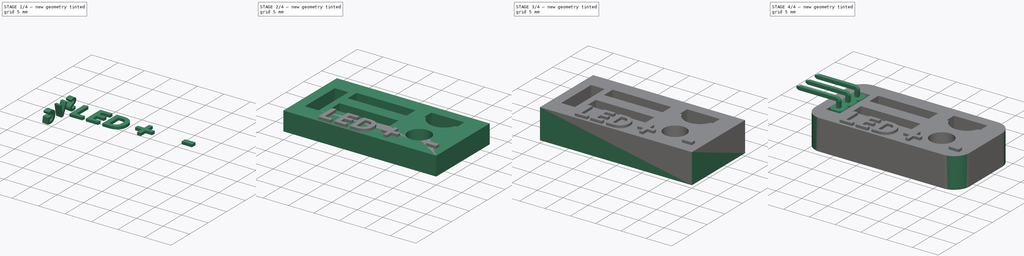
[diagram: build sequence overview — one tinted view per stage of 4, left to right]
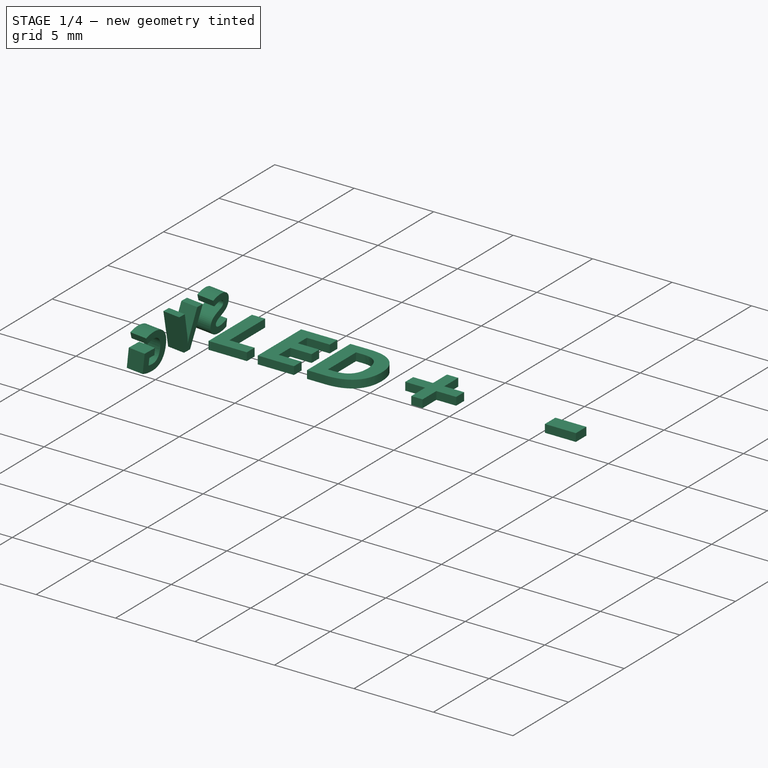
[diagram: stage 1 of 4 — iso view after this stage's code; geometry added in this stage tinted green]
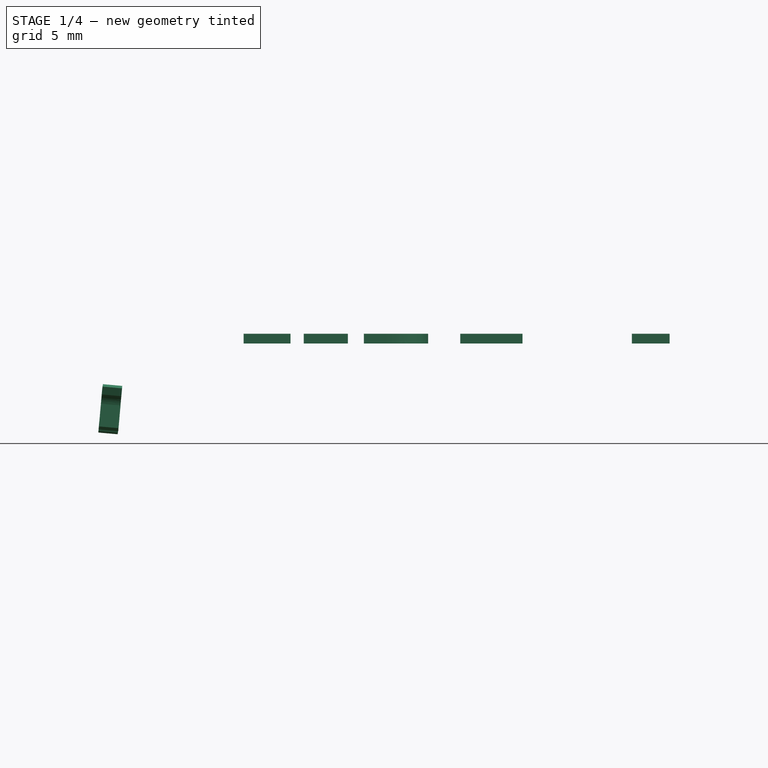
[diagram: stage 1 of 4 — front view after this stage's code; geometry added in this stage tinted green]
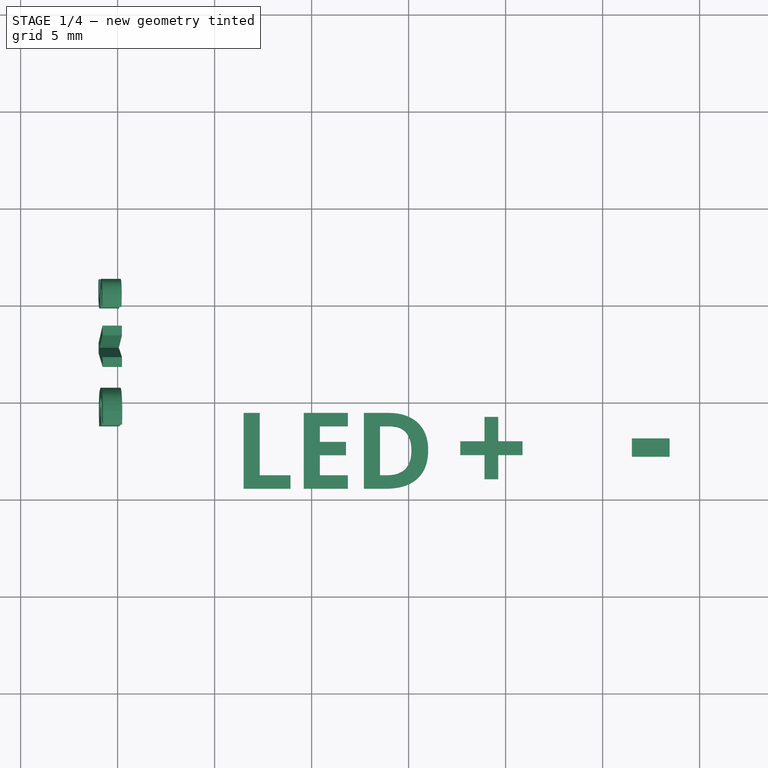
[diagram: stage 1 of 4 — top view after this stage's code; geometry added in this stage tinted green]
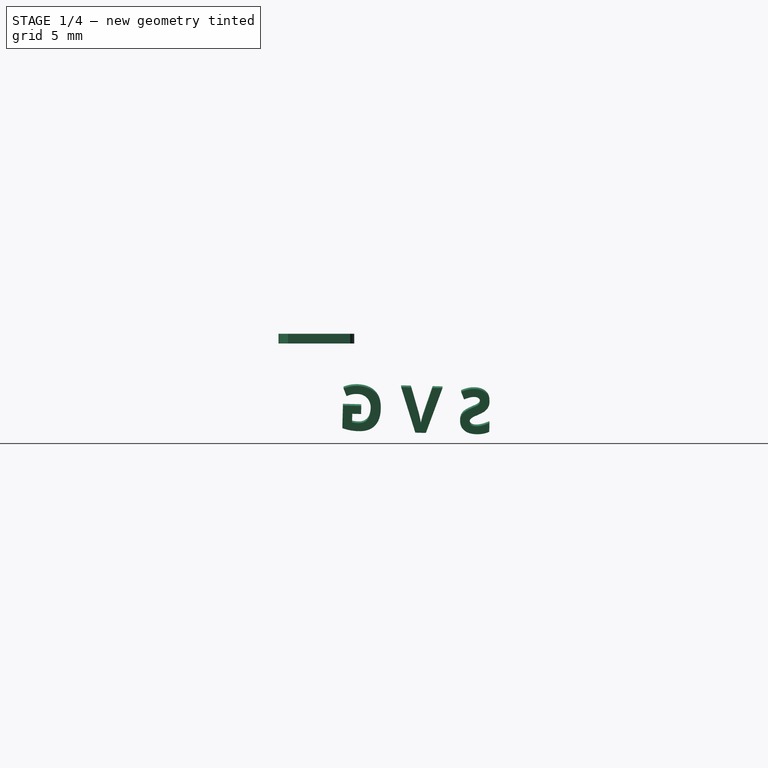
[diagram: stage 1 of 4 — right view after this stage's code; geometry added in this stage tinted green]
FCSTD DOCUMENT  (FreeCAD 0.16R6703 (Git))
Label: pcb-alhambra-led
License: All rights reserved
LicenseURL: http://en.wikipedia.org/wiki/All_rights_reserved
objects: Part::Feature×17, App::DocumentObjectGroup×6, Sketcher::SketchObject×5, PartDesign::Pad×5, Part::Part2DObjectPython×4, Part::Extrusion×3, Part::FeaturePython×2, Spreadsheet::Sheet×1, PartDesign::Pocket×1, Part::MultiFuse×1, Part::Fillet×1, Part::Fuse×1
note: 46 computed .brp shape members not serialized (recipe doc carries the construction recipe); baked Part::Feature solids carry a one-line shape summary decoded from their .brp

FEATURE [Part::Part2DObjectPython] ShapeString  # Draft 2D object (typed FeaturePython)
  FontFile = <userpath>/develop/alhambra-led/Printable-PCB/Open_Sans/OpenSans-Bold.ttf
  Placement = pos=(6.36484,0.980052,3.7) rot=(0,0,1;0rad)
  Size = 5
  String = LED
  Tracking = 0
FEATURE [Part::Extrusion] Extrude  label="Text-LED"
  Base = -> ShapeString
  Dir = (0,0,0.5)
  Placement = pos=(-0.363125,-0.484166,0) rot=(0,0,1;0rad)
  Solid = true
FEATURE [Part::Part2DObjectPython] ShapeString001  # Draft 2D object (typed FeaturePython)
  FontFile = <userpath>/develop/alhambra-led/Printable-PCB/Open_Sans/OpenSans-Bold.ttf
  Placement = pos=(18.1506,0.324873,3.7) rot=(0,0,1;0rad)
  Size = 6
  String = +
  Tracking = 0
FEATURE [Part::Extrusion] Extrude001  label="Text-+"
  Base = -> ShapeString001
  Dir = (0,0,0.5)
  Placement = pos=(-0.746517,-0.00732875,0) rot=(0,0,1;0rad)
  Solid = true
FEATURE [Part::Part2DObjectPython] ShapeString002  # Draft 2D object (typed FeaturePython)
  FontFile = <userpath>/develop/alhambra-led/Printable-PCB/Open_Sans/OpenSans-Bold.ttf
  Placement = pos=(26.2775,0.516359,3.7) rot=(0,0,1;0rad)
  Size = 7
  String = -
  Tracking = 0
FEATURE [Part::Extrusion] Extrude002  label="Text-"
  Base = -> ShapeString002
  Dir = (0,0,0.5)
  Solid = true
FEATURE [App::DocumentObjectGroup] Group001  label="connector"
  Group = -> [Clone003,Clone002]
FEATURE [Part::Feature] Clone004  label="Head001"
  Placement = pos=(23.2,12,0.87) rot=(0,0,1;0rad)
  shape: bbox 4.9 x 3.424 x 4.83 mm, 8 faces (baked)
FEATURE [Part::Feature] Clone001001  label="Pins001"
  Placement = pos=(23.2,12,0.87) rot=(0,0,1;0rad)
  shape: bbox 5.588 x 0.5 x 5.54 mm, 34 faces, 3 solids (baked)
FEATURE [App::DocumentObjectGroup] Group002  label="Transistor-BC635"
  Group = -> [Clone004,Clone001001]
FEATURE [Part::Feature] Part__Feature  label="led_head"
  Placement = pos=(23.2,5,1.2) rot=(1,0,0;1.5708rad)
  shape: bbox 3.686 x 3.686 x 6.1 mm, 5 faces (baked)
FEATURE [Part::Feature] Part__Feature001  label="led-neg-pin"
  Placement = pos=(23.2,5,1.2) rot=(1,0,0;1.5708rad)
  shape: bbox 1.74 x 0.44 x 5.65 mm, 10 faces (baked)
FEATURE [Part::Feature] Part__Feature002  label="led-pos-pin"
  Placement = pos=(23.2,5,1.2) rot=(1,0,0;1.5708rad)
  shape: bbox 1.1 x 0.44 x 7.7 mm, 11 faces (baked)
FEATURE [App::DocumentObjectGroup] Group003  label="Led-3mm"
  Group = -> [Part__Feature,Part__Feature001,Part__Feature002]
FEATURE [Part::Feature] Part__Feature003  label="Clone_of_res-body"
  Placement = pos=(11.497,6.21169,2.36562) rot=(0,0,1;0rad)
  shape: bbox 6 x 2.3 x 2.3 mm, 5 faces (baked)
FEATURE [Part::Feature] Part__Feature004  label="Clone_of_ring-1"
  Placement = pos=(11.497,6.21169,2.36562) rot=(0,0,1;0rad)
  shape: bbox 0.3919 x 2.231 x 2.231 mm, 4 faces (baked)
FEATURE [Part::Feature] Part__Feature005  label="Clone_of_ring-2"
  Placement = pos=(11.497,6.21169,2.36562) rot=(0,0,1;0rad)
  shape: bbox 0.4 x 1.833 x 1.833 mm, 4 faces (baked)
FEATURE [Part::Feature] Part__Feature006  label="Clone_of_ring-4"
  Placement = pos=(11.497,6.21169,2.36562) rot=(0,0,1;0rad)
  shape: bbox 0.3939 x 2.233 x 2.233 mm, 4 faces (baked)
FEATURE [Part::Feature] Part__Feature007  label="Clone_of_Sweep"
  Placement = pos=(11.497,6.21169,2.36562) rot=(0,0,1;0rad)
  shape: bbox 10.64 x 0.5 x 4.404 mm, 7 faces (baked)
FEATURE [Part::Feature] Part__Feature008  label="Clone_of_ring-3"
  Placement = pos=(11.497,6.21169,2.36562) rot=(0,0,1;0rad)
  shape: bbox 0.4 x 1.833 x 1.833 mm, 4 faces (baked)
FEATURE [App::DocumentObjectGroup] Group004  label="Resistor-220ohm"
  Group = -> [Part__Feature003,Part__Feature004,Part__Feature005,Part__Feature006,Part__Feature007,Part__Feature008]
FEATURE [Part::Feature] Part__Feature009  label="Clone_of_res-body001"
  Placement = pos=(11.497,11,2.36562) rot=(0,0,1;0rad)
  shape: bbox 6 x 2.3 x 2.3 mm, 5 faces (baked)
FEATURE [Part::Feature] Part__Feature010  label="Clone_of_ring-005"
  Placement = pos=(11.497,11,2.36562) rot=(0,0,1;0rad)
  shape: bbox 0.4 x 1.833 x 1.833 mm, 4 faces (baked)
FEATURE [Part::Feature] Part__Feature011  label="Clone_of_ring-006"
  Placement = pos=(11.497,11,2.36562) rot=(0,0,1;0rad)
  shape: bbox 0.4 x 1.833 x 1.833 mm, 4 faces (baked)
FEATURE [Part::Feature] Part__Feature012  label="Clone_of_ring-007"
  Placement = pos=(11.497,11,2.36562) rot=(0,0,1;0rad)
  shape: bbox 0.3939 x 2.233 x 2.233 mm, 4 faces (baked)
FEATURE [Part::Feature] Part__Feature013  label="Clone_of_ring-008"
  Placement = pos=(11.497,11,2.36562) rot=(0,0,1;0rad)
  shape: bbox 0.3919 x 2.231 x 2.231 mm, 4 faces (baked)
FEATURE [Part::Feature] Part__Feature014  label="Clone_of_Sweep001"
  Placement = pos=(11.497,11,2.36562) rot=(0,0,1;0rad)
  shape: bbox 10.64 x 0.5 x 4.404 mm, 7 faces (baked)
FEATURE [App::DocumentObjectGroup] Group005  label="Resistor-2K2"
  Group = -> [Part__Feature009,Part__Feature010,Part__Feature011,Part__Feature012,Part__Feature013,Part__Feature014]
FEATURE [App::DocumentObjectGroup] Group  label="Components"
  Group = -> [Group001,Group002,Group003,Group004,Group005]
FEATURE [Part::Part2DObjectPython] ShapeString003  label="Pin Labels text"  # Draft 2D object (typed FeaturePython)
  FontFile = <userpath>/Dropbox/1_proyectos/alhambra-led/Printable-PCB/Open_Sans/OpenSans-Bold.ttf
  Placement = pos=(0,11.5,-1) rot=(-0.555631,0.56905,0.606182;4.25667rad)
  Size = 3
  String = S V G
  Tracking = 0
FEATURE [PartDesign::Pad] Pad011  label="Pin Labels"
  Length = 1
  Length2 = 100
  Placement = pos=(0,11.5,-1) rot=(-0.555631,0.56905,0.606182;4.25667rad)
  Sketch = -> ShapeString003
  Type = 0
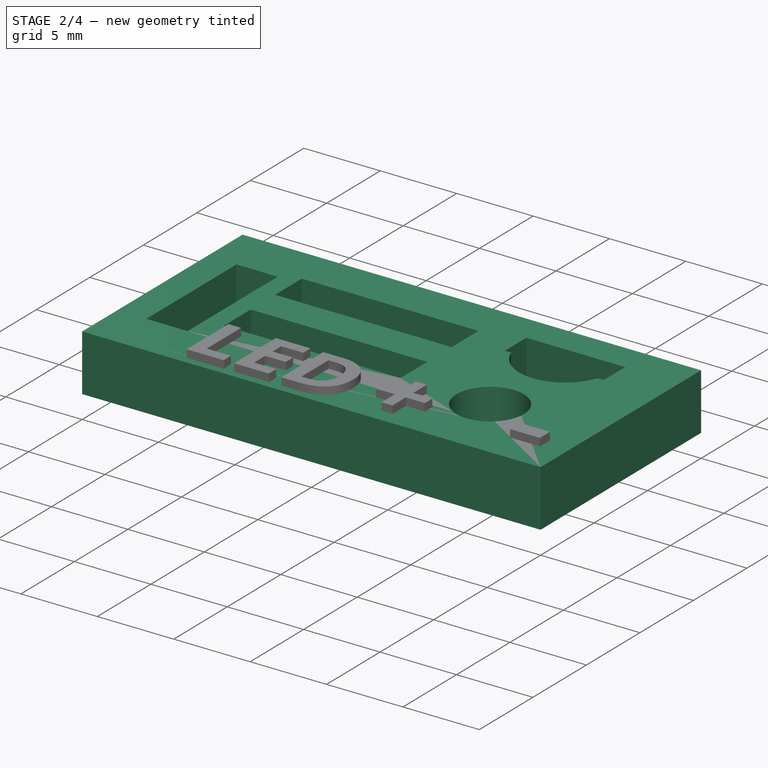
[diagram: stage 2 of 4 — iso view after this stage's code; geometry added in this stage tinted green]
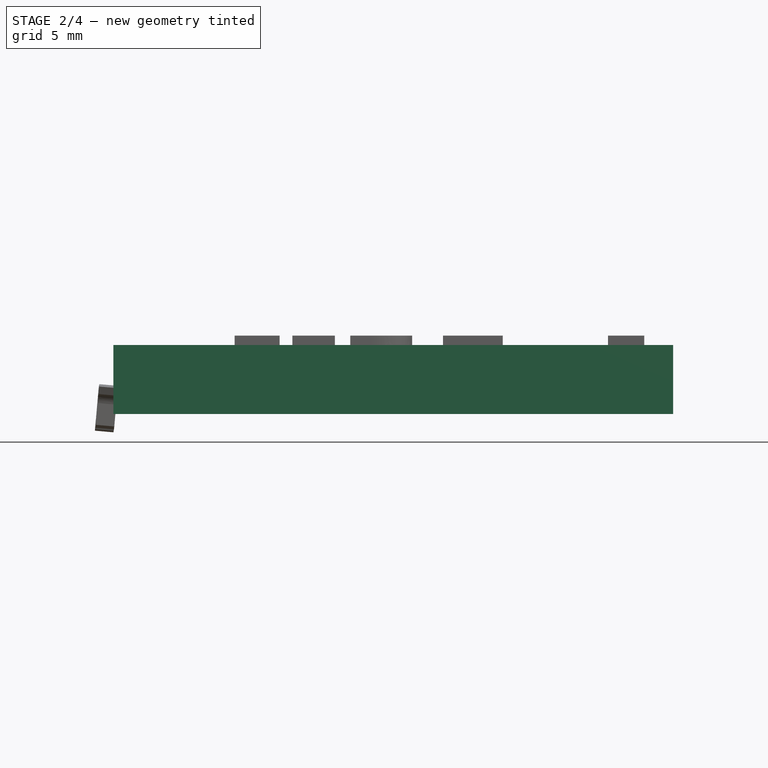
[diagram: stage 2 of 4 — front view after this stage's code; geometry added in this stage tinted green]
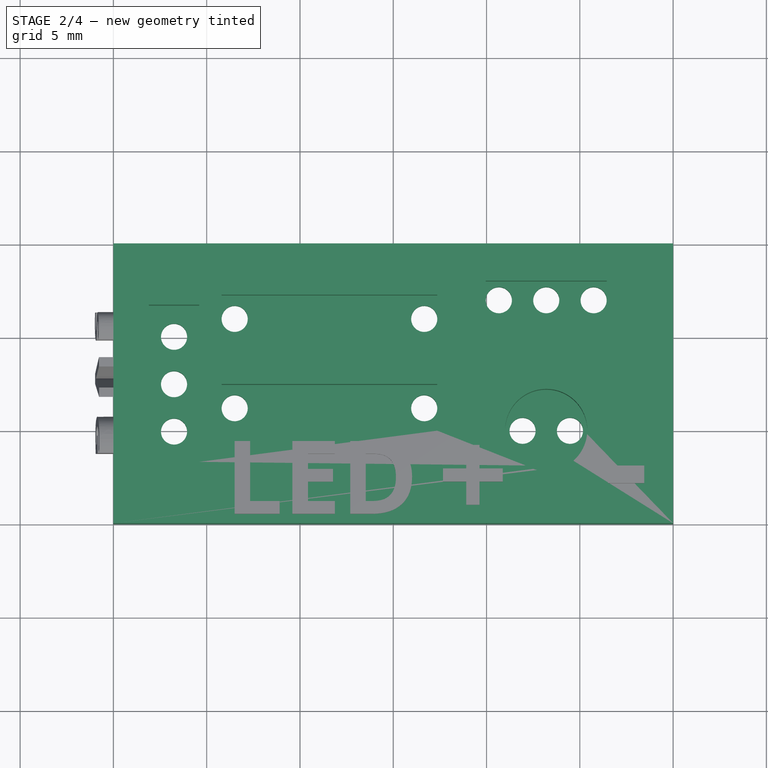
[diagram: stage 2 of 4 — top view after this stage's code; geometry added in this stage tinted green]
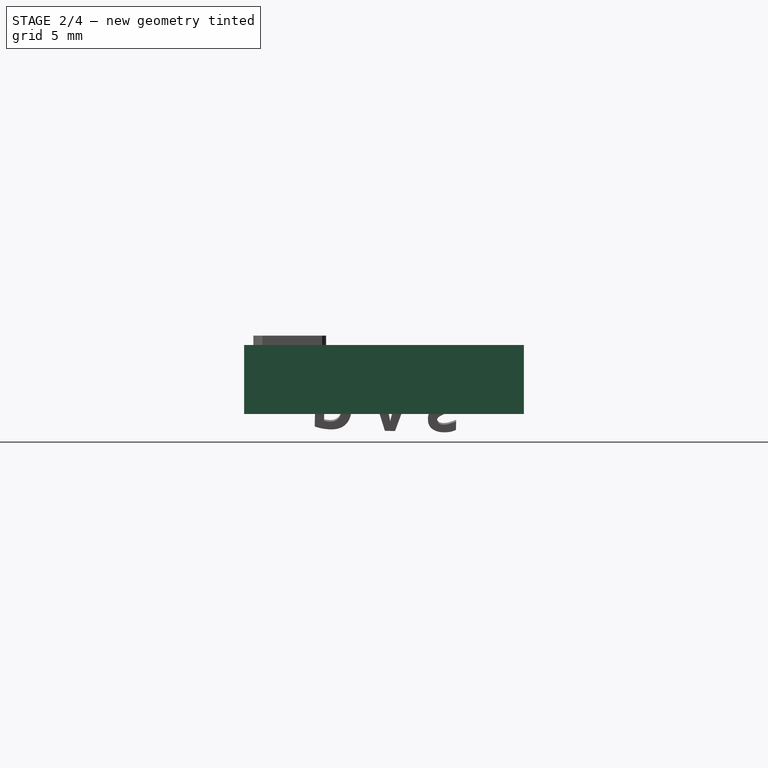
[diagram: stage 2 of 4 — right view after this stage's code; geometry added in this stage tinted green]
FEATURE [Spreadsheet::Sheet] Spreadsheet  label="Parameters"
  cells = B2=PCB_th; C2(PCB_th)=1.2; D2=Thickness of the PCB layer; B3=Drill1_diam; C3(Drill1_diam)=1.4; D3=Drills type 1 diameter; B4=PCB_sp; C4(PCB_sp)=0.2; D4=Thickness of the PCB spacer layer; B5=PCB_ch_th_; C5(PCB_ch_th)=2; D5=Thickness of the Bottom channels; B6=PCB_top_th_; C6(PCB_top_th)=2.5; D6=Thickness of the TOP pcb
FEATURE [Sketcher::SketchObject] Sketch  label="pcb-body-sketch"
  expr: Constraints[28] = 2.54 * 4
  expr: Constraints[15] = Parameters.Drill1_diam / 2
  sketch-geometry (25):
    g0: LineSegment StartX=0 StartY=0 StartZ=0 EndX=30 EndY=0 EndZ=0
    g1: LineSegment StartX=30 StartY=0 StartZ=0 EndX=30 EndY=15 EndZ=0
    g2: LineSegment StartX=30 StartY=15 StartZ=0 EndX=0 EndY=15 EndZ=0
    g3: LineSegment StartX=0 StartY=15 StartZ=0 EndX=0 EndY=0 EndZ=0
    g4: Circle CenterX=3.25 CenterY=10.04 CenterZ=0 NormalX=0 NormalY=0 NormalZ=1 Radius=0.7
    g5: Circle CenterX=3.25 CenterY=7.5 CenterZ=0 NormalX=0 NormalY=0 NormalZ=1 Radius=0.7
    g6: LineSegment [constr] StartX=3.25 StartY=10.04 StartZ=0 EndX=3.25 EndY=7.5 EndZ=0
    g7: Circle CenterX=3.25 CenterY=4.96 CenterZ=0 NormalX=0 NormalY=0 NormalZ=1 Radius=0.7
    g8: LineSegment [constr] StartX=3.25 StartY=7.5 StartZ=0 EndX=3.25 EndY=4.96 EndZ=0
    g9: Circle CenterX=6.5 CenterY=6.21169 CenterZ=0 NormalX=0 NormalY=0 NormalZ=1 Radius=0.7
    g10: Circle CenterX=16.66 CenterY=6.21169 CenterZ=0 NormalX=0 NormalY=0 NormalZ=1 Radius=0.7
    g11: LineSegment [constr] StartX=6.5 StartY=6.21169 StartZ=0 EndX=16.66 EndY=6.21169 EndZ=0
    g12: Circle CenterX=6.5 CenterY=11 CenterZ=0 NormalX=0 NormalY=0 NormalZ=1 Radius=0.7
    g13: Circle CenterX=16.66 CenterY=11 CenterZ=0 NormalX=0 NormalY=0 NormalZ=1 Radius=0.7
    g14: LineSegment [constr] StartX=6.5 StartY=11 StartZ=0 EndX=16.66 EndY=11 EndZ=0
    g15: LineSegment [constr] StartX=6.5 StartY=6.21169 StartZ=0 EndX=6.5 EndY=11 EndZ=0
    g16: Circle CenterX=21.93 CenterY=5 CenterZ=0 NormalX=0 NormalY=0 NormalZ=1 Radius=0.7
    g17: Circle CenterX=24.47 CenterY=5 CenterZ=0 NormalX=0 NormalY=0 NormalZ=1 Radius=0.7
    g18: Circle CenterX=20.66 CenterY=12 CenterZ=0 NormalX=0 NormalY=0 NormalZ=1 Radius=0.7
    g19: Circle CenterX=23.2 CenterY=12 CenterZ=0 NormalX=0 NormalY=0 NormalZ=1 Radius=0.7
    g20: Circle CenterX=25.74 CenterY=12 CenterZ=0 NormalX=0 NormalY=0 NormalZ=1 Radius=0.7
    g21: LineSegment [constr] StartX=20.66 StartY=12 StartZ=0 EndX=23.2 EndY=12 EndZ=0
    g22: LineSegment [constr] StartX=23.2 StartY=12 StartZ=0 EndX=25.74 EndY=12 EndZ=0
    g23: LineSegment [constr] StartX=21.93 StartY=5 StartZ=0 EndX=24.47 EndY=5 EndZ=0
    g24: LineSegment [constr] StartX=23.2 StartY=12 StartZ=0 EndX=23.2 EndY=5 EndZ=0
  constraints (63):
    c: Coincident(g0,g1)
    c: Coincident(g1,g2)
    c: Coincident(g2,g3)
    c: Coincident(g3,g0)
    c: Horizontal(g0)
    c: Horizontal(g2)
    c: Vertical(g1)
    c: Vertical(g3)
    c: Coincident(g0,g-1)
    c: DistanceX(g2,g2) = 30
    c: DistanceY(g3,g3) = 15
    c: Coincident(g6,g4)
    c: Vertical(g6)
    c: DistanceY(g6,g6) = 2.54
    c: Equal(g4,g5)
    c: Radius(g4) = 0.7
    c: DistanceX(g2,g4) = 3.25
    c: Equal(g7,g5)
    c: Coincident(g5,g6)
    c: Coincident(g8,g5)
    c: Coincident(g8,g7)
    c: Vertical(g8)
    c: Equal(g6,g8)
    c: Coincident(g11,g9)
    c: Horizontal(g11)
    c: Coincident(g11,g10)
    c: Equal(g9,g10)
    c: DistanceX(g5,g9) = 3.25
    c: DistanceX(g9,g10) = 10.16
    c: Coincident(g14,g12)
    c: Coincident(g14,g13)
    c: Horizontal(g14)
    c: Equal(g12,g13)
    c: Equal(g13,g4)
    c: DistanceX(g14,g14) = 10.16
    c: Coincident(g15,g9)
    c: Coincident(g15,g12)
    c: Vertical(g15)
    c: DistanceX(g16,g17) = 2.54
    c: Equal(g16,g17)
    c: Equal(g17,g13)
    c: Equal(g10,g12)
    c: Equal(g18,g19)
    c: Equal(g19,g20)
    c: Equal(g20,g13)
    c: Coincident(g21,g18)
    c: Coincident(g21,g19)
    c: Coincident(g22,g19)
    c: Coincident(g22,g20)
    c: DistanceX(g21,g21) = 2.54
    c: DistanceX(g19,g20) = 2.54
    c: Coincident(g23,g16)
    c: Coincident(g23,g17)
    c: Horizontal(g23)
    c: DistanceX(g13,g18) = 4
    c: Horizontal(g21)
    c: Horizontal(g22)
    c: Vertical(g24)
    c: Coincident(g24,g19)
    c: DistanceY(g13,g18) = 1
    c: PointOnObject(g24,g23)
    c: Symmetric(g16,g17,g24)
    c: DistanceY(g24,g24) = 7
FEATURE [PartDesign::Pad] Pad  label="PCB-layer-body"
  Length = 1.2
  Length2 = 100
  Sketch = -> Sketch
  Type = 0
  expr: Length = Parameters.PCB_th
FEATURE [Sketcher::SketchObject] Sketch017  label="Top-base-sketch"
  ExternalGeometry = -> [Pad]
  Placement = pos=(0,0,1.2) rot=(0,0,1;0rad)
  Support = -> Pad [Face18]
  sketch-geometry (4):
    g0: LineSegment StartX=0 StartY=15 StartZ=0 EndX=30 EndY=15 EndZ=0
    g1: LineSegment StartX=30 StartY=15 StartZ=0 EndX=30 EndY=0 EndZ=0
    g2: LineSegment StartX=30 StartY=0 StartZ=0 EndX=0 EndY=0 EndZ=0
    g3: LineSegment StartX=0 StartY=0 StartZ=0 EndX=0 EndY=15 EndZ=0
  constraints (12):
    c: Coincident(g0,g1)
    c: Coincident(g1,g2)
    c: Coincident(g2,g3)
    c: Coincident(g3,g0)
    c: Horizontal(g0)
    c: Horizontal(g2)
    c: Vertical(g1)
    c: Vertical(g3)
    c: PointOnObject(g0,g-2)
    c: PointOnObject(g1,g-1)
    c: Coincident(g0,g-3)
    c: Coincident(g0,g-4)
FEATURE [PartDesign::Pad] Pad008  label="PCB-top-base"
  Length = 2.5
  Length2 = 100
  Sketch = -> Sketch017
  Type = 0
  expr: Length = Parameters.PCB_top_th
FEATURE [Sketcher::SketchObject] Sketch018  label="PCB-top-sketch"
  ExternalGeometry = -> [Pad008]
  Placement = pos=(0,0,3.7) rot=(0,0,1;0rad)
  Support = -> Pad008 [Face27]
  expr: Constraints[16] = 2.54 * 3 + 0.8
  sketch-geometry (28):
    g0: LineSegment StartX=1.9 StartY=11.71 StartZ=0 EndX=4.6 EndY=11.71 EndZ=0
    g1: LineSegment StartX=4.6 StartY=11.71 StartZ=0 EndX=4.6 EndY=3.29 EndZ=0
    g2: LineSegment StartX=4.6 StartY=3.29 StartZ=0 EndX=1.9 EndY=3.29 EndZ=0
    g3: LineSegment StartX=1.9 StartY=3.29 StartZ=0 EndX=1.9 EndY=11.71 EndZ=0
    g4: LineSegment [constr] StartX=3.25 StartY=7.5 StartZ=0 EndX=4.6 EndY=7.5 EndZ=0
    g5: LineSegment [constr] StartX=3.25 StartY=7.5 StartZ=0 EndX=3.25 EndY=11.71 EndZ=0
    g6: LineSegment StartX=5.8 StartY=12.25 StartZ=0 EndX=17.36 EndY=12.25 EndZ=0
    g7: LineSegment StartX=17.36 StartY=12.25 StartZ=0 EndX=17.36 EndY=9.75 EndZ=0
    g8: LineSegment StartX=17.36 StartY=9.75 StartZ=0 EndX=5.8 EndY=9.75 EndZ=0
    g9: LineSegment StartX=5.8 StartY=9.75 StartZ=0 EndX=5.8 EndY=12.25 EndZ=0
    g10: LineSegment [constr] StartX=6.5 StartY=11 StartZ=0 EndX=17.36 EndY=11 EndZ=0
    g11: LineSegment StartX=5.8 StartY=7.46169 StartZ=0 EndX=17.36 EndY=7.46169 EndZ=0
    g12: LineSegment StartX=17.36 StartY=7.46169 StartZ=0 EndX=17.36 EndY=4.96169 EndZ=0
    g13: LineSegment StartX=17.36 StartY=4.96169 StartZ=0 EndX=5.8 EndY=4.96169 EndZ=0
    g14: LineSegment StartX=5.8 StartY=4.96169 StartZ=0 EndX=5.8 EndY=7.46169 EndZ=0
    g15: Circle CenterX=23.2 CenterY=5 CenterZ=0 NormalX=0 NormalY=0 NormalZ=1 Radius=2.2
    g16: LineSegment StartX=19.96 StartY=13 StartZ=0 EndX=26.44 EndY=13 EndZ=0
    g17: LineSegment StartX=26.44 StartY=13 StartZ=0 EndX=26.44 EndY=11 EndZ=0
    g18: LineSegment [constr] StartX=26.44 StartY=11 StartZ=0 EndX=19.96 EndY=11 EndZ=0
    g19: LineSegment StartX=19.96 StartY=11 StartZ=0 EndX=19.96 EndY=13 EndZ=0
    g20: LineSegment [constr] StartX=23.2 StartY=13 StartZ=0 EndX=23.2 EndY=11 EndZ=0
    g21: LineSegment [constr] StartX=19.96 StartY=12 StartZ=0 EndX=26.44 EndY=12 EndZ=0
    g22: ArcOfCircle CenterX=23.2 CenterY=12 CenterZ=0 NormalX=0 NormalY=0 NormalZ=1 Radius=3 StartAngle=3.48143 EndAngle=5.94335
    g23: LineSegment StartX=19.96 StartY=11 StartZ=0 EndX=20.3716 EndY=11 EndZ=0
    g24: LineSegment StartX=26.0284 StartY=11 StartZ=0 EndX=26.44 EndY=11 EndZ=0
    g25: LineSegment [constr] StartX=23.2 StartY=11 StartZ=0 EndX=23.2 EndY=5 EndZ=0
    g26: LineSegment [constr] StartX=21.93 StartY=5 StartZ=0 EndX=23.2 EndY=5 EndZ=0
    g27: LineSegment [constr] StartX=6.5 StartY=6.21169 StartZ=0 EndX=17.36 EndY=6.21169 EndZ=0
  constraints (83):
    c: Coincident(g0,g1)
    c: Coincident(g1,g2)
    c: Coincident(g2,g3)
    c: Coincident(g3,g0)
    c: Horizontal(g0)
    c: Horizontal(g2)
    c: Vertical(g1)
    c: Vertical(g3)
    c: Coincident(g4,g-3)
    c: Horizontal(g4)
    c: Symmetric(g0,g2,g4)
    c: DistanceX(g0,g0) = 2.7
    c: Coincident(g5,g4)
    c: PointOnObject(g5,g0)
    c: Vertical(g5)
    c: Symmetric(g0,g0,g5)
    c: DistanceY(g1,g1) = 8.42
    c: Coincident(g6,g7)
    c: Coincident(g7,g8)
    c: Coincident(g8,g9)
    c: Coincident(g9,g6)
    c: Horizontal(g6)
    c: Horizontal(g8)
    c: Vertical(g7)
    c: Vertical(g9)
    c: DistanceY(g7,g7) = 2.5
    c: Horizontal(g10)
    c: Coincident(g10,g-4)
    c: PointOnObject(g10,g7)
    c: Tangent(g9,g-4)
    c: Symmetric(g6,g8,g10)
    c: Tangent(g7,g-5)
    c: Coincident(g11,g12)
    c: Coincident(g12,g13)
    c: Coincident(g13,g14)
    c: Coincident(g14,g11)
    c: Horizontal(g11)
    c: Horizontal(g13)
    c: Vertical(g12)
    c: Vertical(g14)
    c: PointOnObject(g11,g9)
    c: PointOnObject(g11,g7)
    c: Equal(g12,g7)
    c: Radius(g15) = 2.2
    c: Coincident(g16,g17)
    c: Coincident(g17,g18)
    c: Coincident(g18,g19)
    c: Coincident(g19,g16)
    c: Horizontal(g16)
    c: Horizontal(g18)
    c: Vertical(g17)
    c: Vertical(g19)
    c: DistanceY(g17,g17) = 2
    c: PointOnObject(g20,g18)
    c: Vertical(g20)
    c: PointOnObject(g20,g16)
    c: Symmetric(g16,g16,g20)
    c: PointOnObject(g-9,g20)
    c: PointOnObject(g21,g19)
    c: PointOnObject(g21,g17)
    c: Horizontal(g21)
    c: PointOnObject(g-9,g21)
    c: Symmetric(g16,g18,g21)
    c: Tangent(g19,g-7)
    c: Coincident(g22,g-9)
    c: Radius(g22) = 3
    c: Coincident(g23,g18)
    c: Coincident(g23,g22)
    c: Coincident(g24,g22)
    c: Coincident(g24,g17)
    c: Horizontal(g23)
    c: Horizontal(g24)
    c: Vertical(g25)
    c: Coincident(g25,g20)
    c: Coincident(g25,g15)
    c: Coincident(g26,g-10)
    c: Coincident(g26,g15)
    c: Horizontal(g26)
    c: PointOnObject(g4,g1)
    c: Horizontal(g27)
    c: Coincident(g27,g-6)
    c: PointOnObject(g27,g12)
    c: Symmetric(g11,g13,g27)
FEATURE [PartDesign::Pocket] Pocket  label="PCB-top"
  Length = 2.5
  Sketch = -> Sketch018
  Type = 0
  expr: Length = Parameters.PCB_top_th
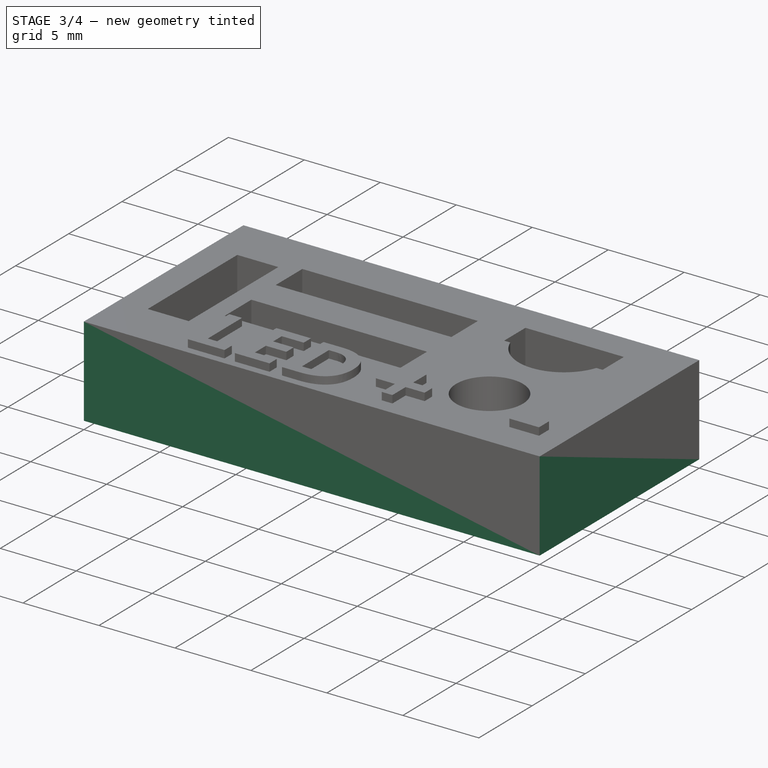
[diagram: stage 3 of 4 — iso view after this stage's code; geometry added in this stage tinted green]
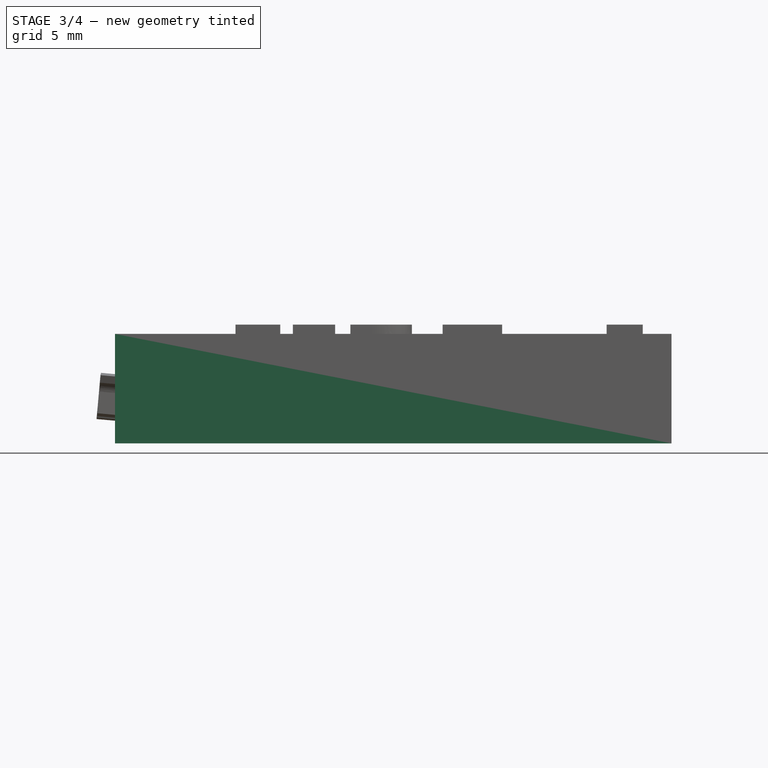
[diagram: stage 3 of 4 — front view after this stage's code; geometry added in this stage tinted green]
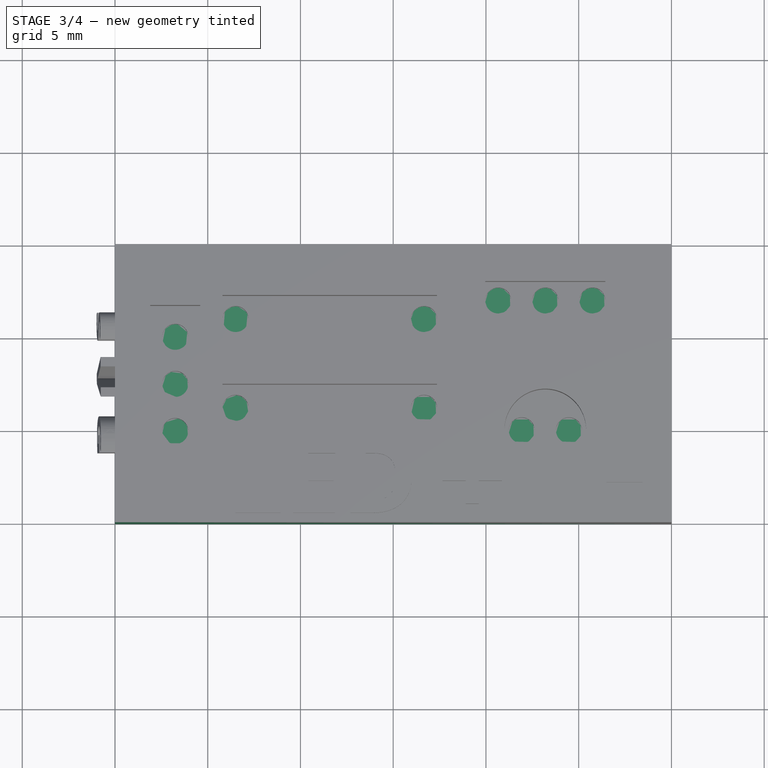
[diagram: stage 3 of 4 — top view after this stage's code; geometry added in this stage tinted green]
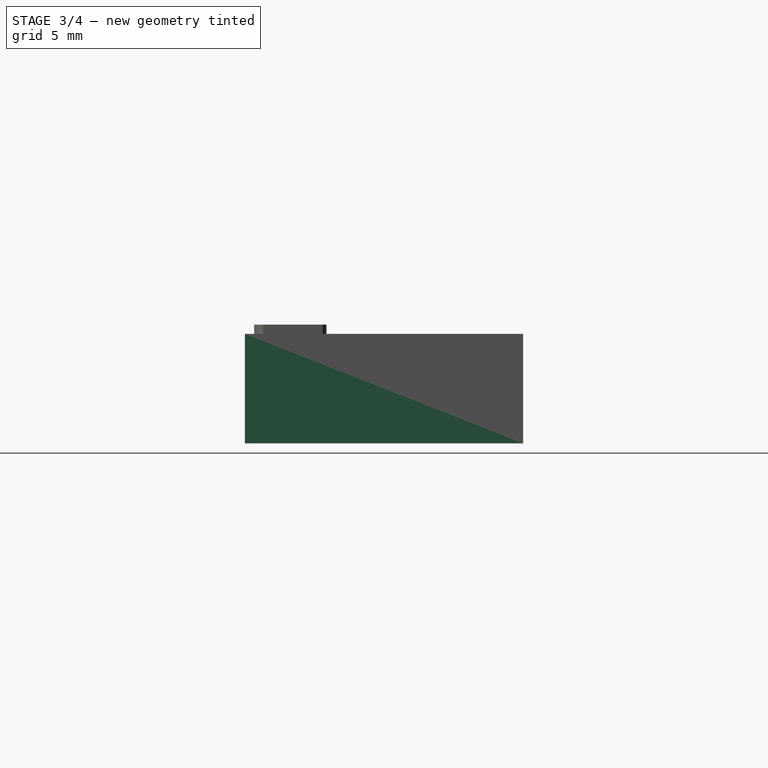
[diagram: stage 3 of 4 — right view after this stage's code; geometry added in this stage tinted green]
FEATURE [Sketcher::SketchObject] Sketch019  label="spacer-layer-sketch"
  ExternalGeometry = -> [Pocket]
  Placement = pos=(0,0,0) rot=(1,0,0;3.14159rad)
  Support = -> Pocket [Face1]
  sketch-geometry (4):
    g0: LineSegment StartX=0 StartY=0 StartZ=0 EndX=30 EndY=0 EndZ=0
    g1: LineSegment StartX=30 StartY=0 StartZ=0 EndX=30 EndY=-15 EndZ=0
    g2: LineSegment StartX=30 StartY=-15 StartZ=0 EndX=0 EndY=-15 EndZ=0
    g3: LineSegment StartX=0 StartY=-15 StartZ=0 EndX=0 EndY=0 EndZ=0
  constraints (10):
    c: Coincident(g0,g1)
    c: Coincident(g1,g2)
    c: Coincident(g2,g3)
    c: Coincident(g3,g0)
    c: Horizontal(g0)
    c: Horizontal(g2)
    c: Vertical(g1)
    c: Vertical(g3)
    c: Coincident(g1,g-3)
    c: Coincident(g0,g-1)
FEATURE [PartDesign::Pad] Pad009  label="Spacer-layer"
  Length = 0.2
  Length2 = 100
  Sketch = -> Sketch019
  Type = 0
  expr: Length = Parameters.PCB_sp
FEATURE [Sketcher::SketchObject] Sketch020  label="Bottom-channels-sketch"
  ExternalGeometry = -> [Pad009]
  Placement = pos=(0,0,-0.2) rot=(1,0,0;3.14159rad)
  Support = -> Pad009 [Face1]
  sketch-geometry (33):
    g0: LineSegment StartX=0 StartY=0 StartZ=0 EndX=30 EndY=0 EndZ=0
    g1: LineSegment StartX=30 StartY=0 StartZ=0 EndX=30 EndY=-15 EndZ=0
    g2: LineSegment StartX=30 StartY=-15 StartZ=0 EndX=0 EndY=-15 EndZ=0
    g3: LineSegment StartX=0 StartY=-15 StartZ=0 EndX=0 EndY=0 EndZ=0
    g4: LineSegment StartX=22.4512 StartY=-7.60457 StartZ=0 EndX=14.7502 EndY=-7.60457 EndZ=0
    g5: LineSegment StartX=14.7502 StartY=-7.60457 StartZ=0 EndX=14.7502 EndY=-3.50936 EndZ=0
    g6: LineSegment StartX=6.01684 StartY=-4.91866 StartZ=0 EndX=8.36252 EndY=-4.91866 EndZ=0
    g7: LineSegment StartX=8.36252 StartY=-4.91866 StartZ=0 EndX=8.36252 EndY=-7.45592 EndZ=0
    g8: LineSegment StartX=8.36252 StartY=-7.45592 StartZ=0 EndX=6.59513 EndY=-7.45592 EndZ=0
    g9: LineSegment StartX=4.53601 StartY=-11.6503 StartZ=0 EndX=1.90203 EndY=-11.6503 EndZ=0
    g10: LineSegment StartX=1.90203 StartY=-11.6503 StartZ=0 EndX=1.90203 EndY=-2.91999 EndZ=0
    g11: LineSegment StartX=6.59513 StartY=-9.76 StartZ=0 EndX=8.36849 EndY=-9.76 EndZ=0
    g12: LineSegment StartX=8.36849 StartY=-9.76 StartZ=0 EndX=8.36849 EndY=-12.2962 EndZ=0
    g13: LineSegment StartX=8.36849 StartY=-12.2962 StartZ=0 EndX=5.1365 EndY=-12.2962 EndZ=0
    g14: LineSegment StartX=4.53601 StartY=-11.6503 StartZ=0 EndX=5.1365 EndY=-12.2962 EndZ=0
    g15: LineSegment StartX=14.717 StartY=-9.53702 StartZ=0 EndX=22.4512 EndY=-9.53702 EndZ=0
    g16: LineSegment StartX=17.7395 StartY=-12.262 StartZ=0 EndX=14.717 EndY=-12.262 EndZ=0
    g17: LineSegment StartX=14.717 StartY=-12.262 StartZ=0 EndX=14.717 EndY=-9.53702 EndZ=0
    g18: LineSegment StartX=28.6705 StartY=-13.1294 StartZ=0 EndX=19.5233 EndY=-13.1294 EndZ=0
    g19: LineSegment StartX=17.7395 StartY=-12.262 StartZ=0 EndX=19.5233 EndY=-13.1294 EndZ=0
    g20: LineSegment StartX=14.7502 StartY=-3.50936 StartZ=0 EndX=25.8454 EndY=-3.50936 EndZ=0
    g21: LineSegment StartX=25.8454 StartY=-3.50936 StartZ=0 EndX=25.8454 EndY=-8.769 EndZ=0
    g22: LineSegment StartX=28.6705 StartY=-10.6752 StartZ=0 EndX=28.6705 EndY=-13.1294 EndZ=0
    g23: LineSegment StartX=6.01684 StartY=-2.66934 StartZ=0 EndX=26.8396 EndY=-2.66934 EndZ=0
    g24: LineSegment StartX=1.90203 StartY=-2.91999 StartZ=0 EndX=4.30831 EndY=-0.978947 EndZ=0
    g25: LineSegment StartX=4.30831 StartY=-0.978947 StartZ=0 EndX=28.7441 EndY=-0.978947 EndZ=0
    g26: LineSegment StartX=28.7441 StartY=-0.978947 StartZ=0 EndX=28.7441 EndY=-6.53924 EndZ=0
    g27: LineSegment StartX=26.8396 StartY=-8.769 StartZ=0 EndX=26.8396 EndY=-2.66934 EndZ=0
    g28: LineSegment StartX=6.01684 StartY=-4.91866 StartZ=0 EndX=6.01684 EndY=-2.66934 EndZ=0
    g29: LineSegment StartX=6.59513 StartY=-9.76 StartZ=0 EndX=6.59513 EndY=-7.45592 EndZ=0
    g30: LineSegment StartX=22.4512 StartY=-7.60457 StartZ=0 EndX=22.4512 EndY=-9.53702 EndZ=0
    g31: LineSegment StartX=25.8454 StartY=-8.769 StartZ=0 EndX=26.8396 EndY=-8.769 EndZ=0
    g32: LineSegment StartX=28.6705 StartY=-10.6752 StartZ=0 EndX=28.7441 EndY=-6.53924 EndZ=0
  constraints (64):
    c: Coincident(g0,g1)
    c: Coincident(g1,g2)
    c: Coincident(g2,g3)
    c: Coincident(g3,g0)
    c: Horizontal(g0)
    c: Horizontal(g2)
    c: Vertical(g1)
    c: Vertical(g3)
    c: Coincident(g0,g-1)
    c: Coincident(g1,g-3)
    c: Coincident(g4,g5)
    c: Vertical(g5)
    c: Horizontal(g4)
    c: Coincident(g6,g7)
    c: Coincident(g7,g8)
    c: Horizontal(g6)
    c: Horizontal(g8)
    c: Vertical(g7)
    c: Coincident(g9,g10)
    c: Horizontal(g9)
    c: Vertical(g10)
    c: Coincident(g11,g12)
    c: Coincident(g12,g13)
    c: Horizontal(g11)
    c: Horizontal(g13)
    c: Vertical(g12)
    c: Coincident(g14,g9)
    c: Coincident(g14,g13)
    c: Coincident(g16,g17)
    c: Coincident(g17,g15)
    c: Horizontal(g15)
    c: Horizontal(g16)
    c: Vertical(g17)
    c: Horizontal(g18)
    c: Coincident(g19,g16)
    c: Coincident(g19,g18)
    c: Coincident(g20,g21)
    c: Horizontal(g20)
    c: Vertical(g21)
    c: Vertical(g22)
    c: Horizontal(g23)
    c: Coincident(g24,g25)
    c: Horizontal(g25)
    c: Coincident(g25,g26)
    c: Vertical(g26)
    c: Vertical(g27)
    c: Coincident(g27,g23)
    c: Vertical(g28)
    c: Coincident(g23,g28)
    c: Coincident(g24,g10)
    c: Coincident(g29,g11)
    c: Coincident(g29,g8)
    c: Vertical(g29)
    c: Coincident(g6,g28)
    c: Coincident(g30,g4)
    c: Coincident(g30,g15)
    c: Vertical(g30)
    c: Coincident(g18,g22)
    c: Coincident(g31,g21)
    c: Coincident(g31,g27)
    c: Horizontal(g31)
    c: Coincident(g20,g5)
    c: Coincident(g32,g22)
    c: Coincident(g32,g26)
FEATURE [PartDesign::Pad] Pad010  label="Bottom-channels-layer"
  Length = 2
  Length2 = 100
  Sketch = -> Sketch020
  Type = 0
  expr: Length = Parameters.PCB_ch_th
FEATURE [Part::MultiFuse] Fusion  label="PCB-with-text"
  Shapes = -> [Pad010,Extrude,Extrude001,Extrude002]
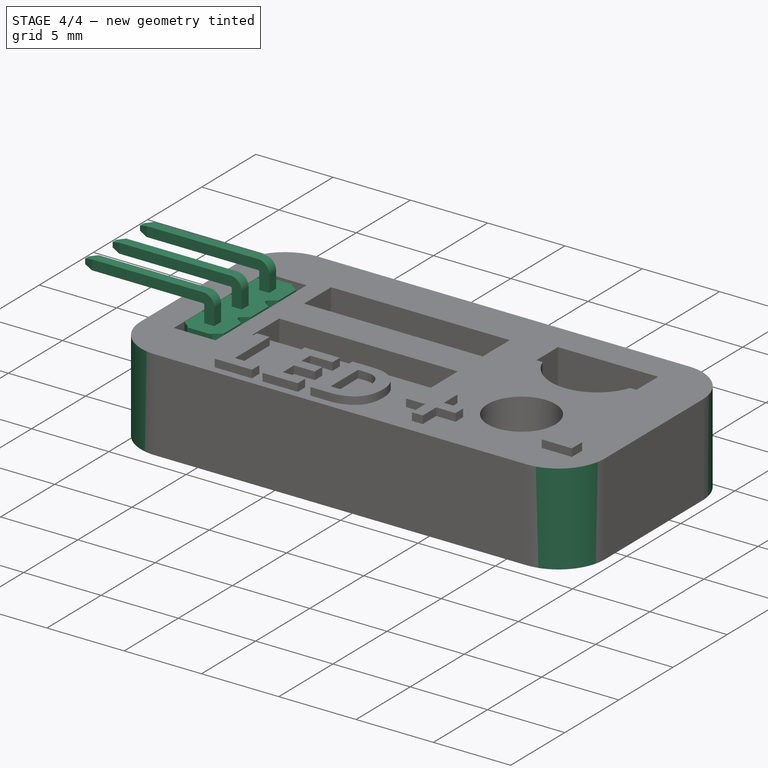
[diagram: stage 4 of 4 — iso view after this stage's code; geometry added in this stage tinted green]
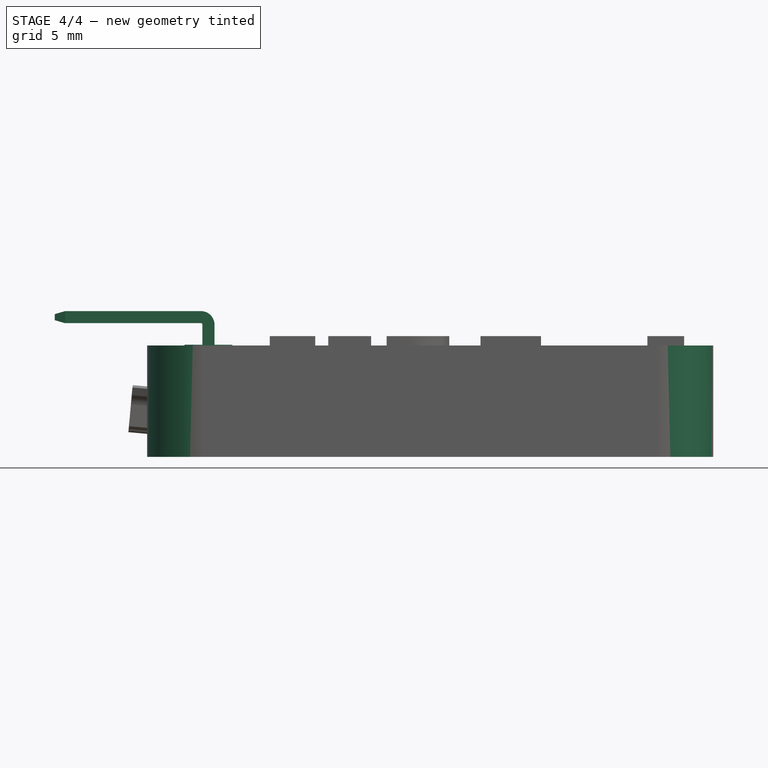
[diagram: stage 4 of 4 — front view after this stage's code; geometry added in this stage tinted green]
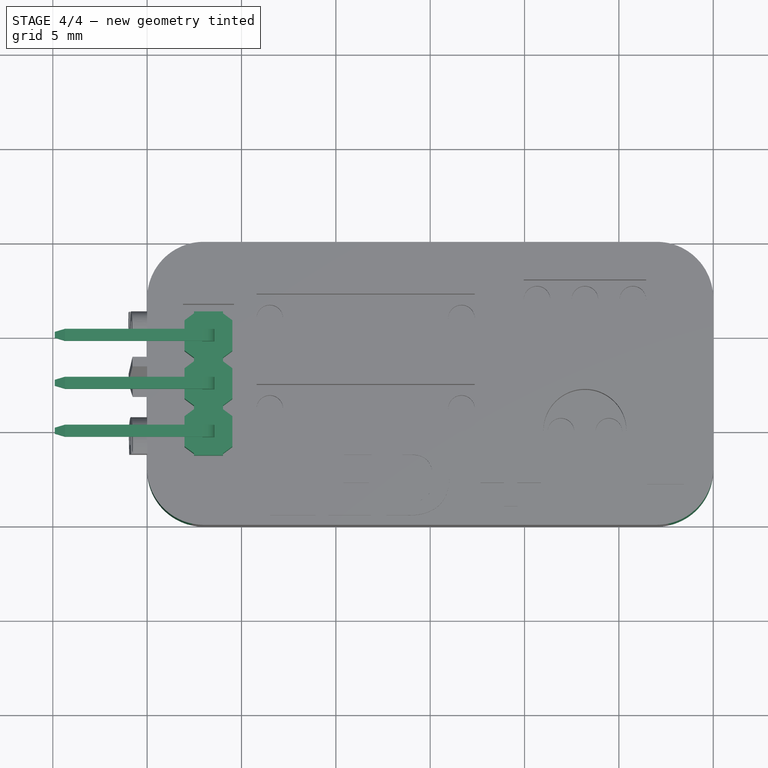
[diagram: stage 4 of 4 — top view after this stage's code; geometry added in this stage tinted green]
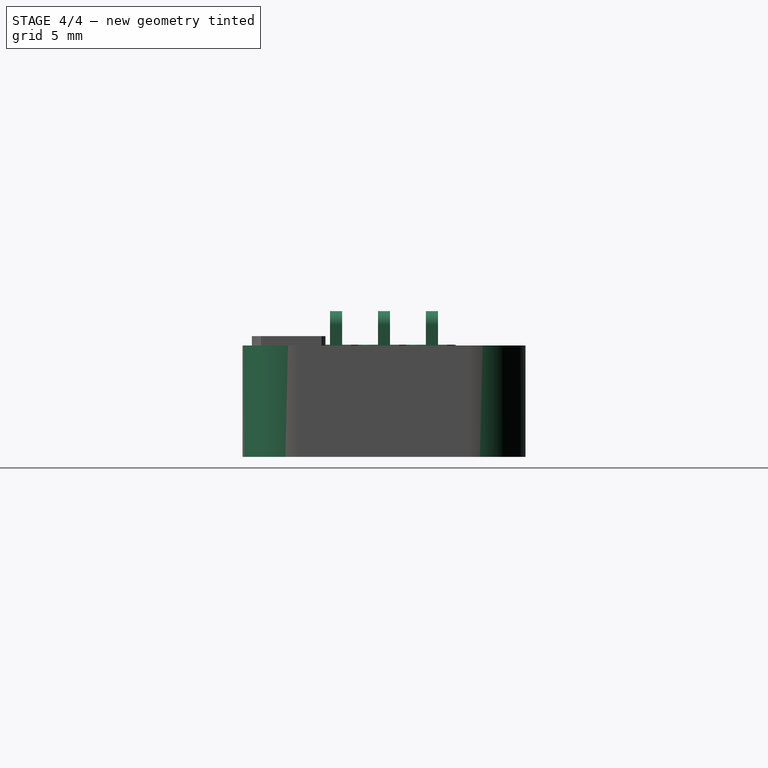
[diagram: stage 4 of 4 — right view after this stage's code; geometry added in this stage tinted green]
FEATURE [Part::Fillet] Fillet  label="PCB-rounded-edges"
  Base = -> Fusion
  Edges = 4 edges r=3: [Edge73,Edge75,Edge77,Edge78]
FEATURE [Part::FeaturePython] Clone002  label="support-array001"  # WARN: FeaturePython — macro-defined, semantics opaque (R4)
  Placement = pos=(3.25,4.96,1.2) rot=(0,0,1;1.5708rad)
  Scale = (1,1,1)
FEATURE [Part::FeaturePython] Clone003  label="pin-array001"  # WARN: FeaturePython — macro-defined, semantics opaque (R4)
  Placement = pos=(5.79,4.96,-1.254) rot=(0,0,1;1.5708rad)
  Scale = (1,1,1)
FEATURE [Part::Fuse] Fusion001  label="PCB-rounded-labels"
  Base = -> Fillet
  Tool = -> Pad011
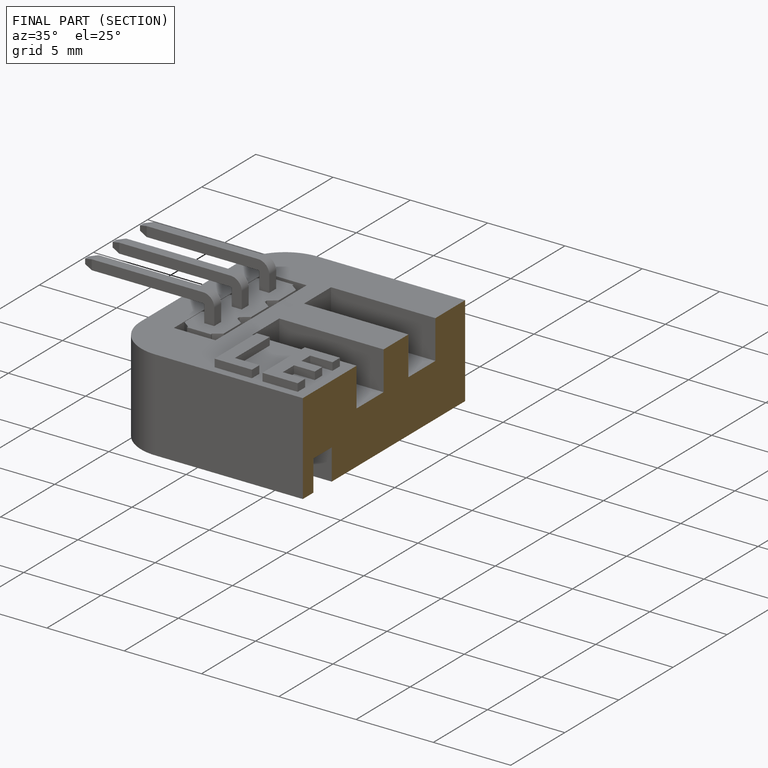
[diagram: finished part — half-section view (interior)]
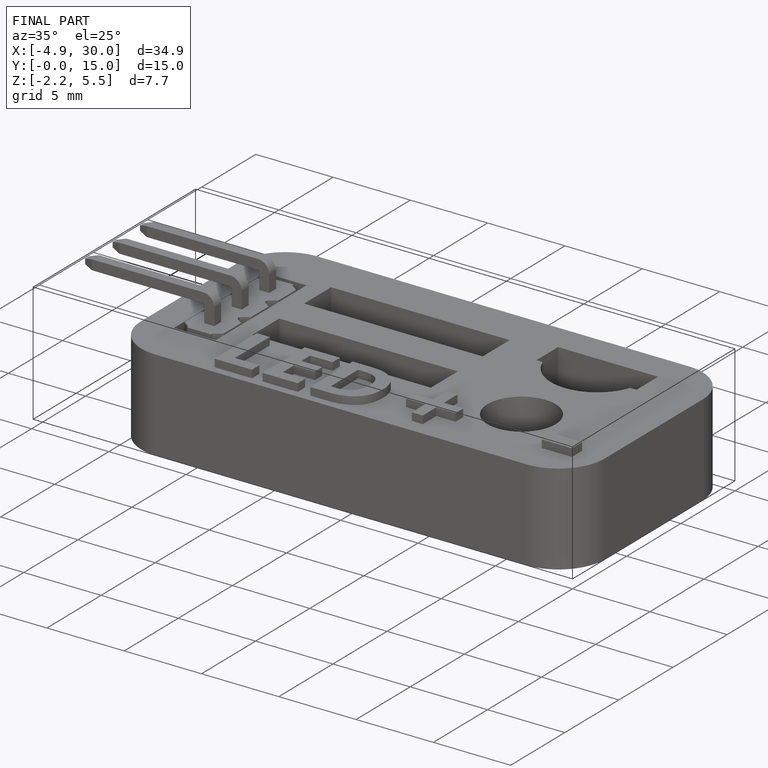
[diagram: finished part — iso view with bounding-box wireframe]
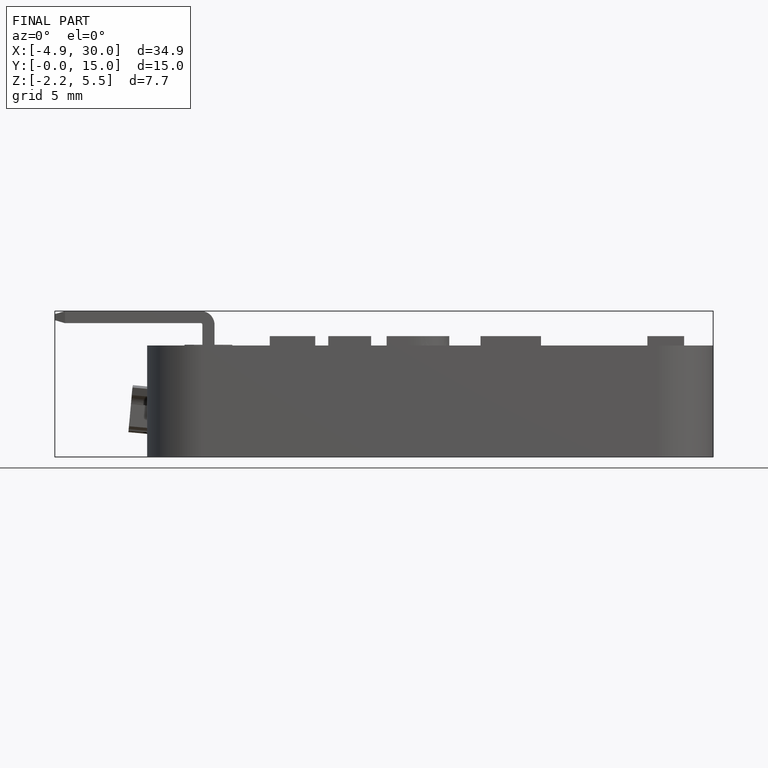
[diagram: finished part — front view with bounding-box wireframe]
